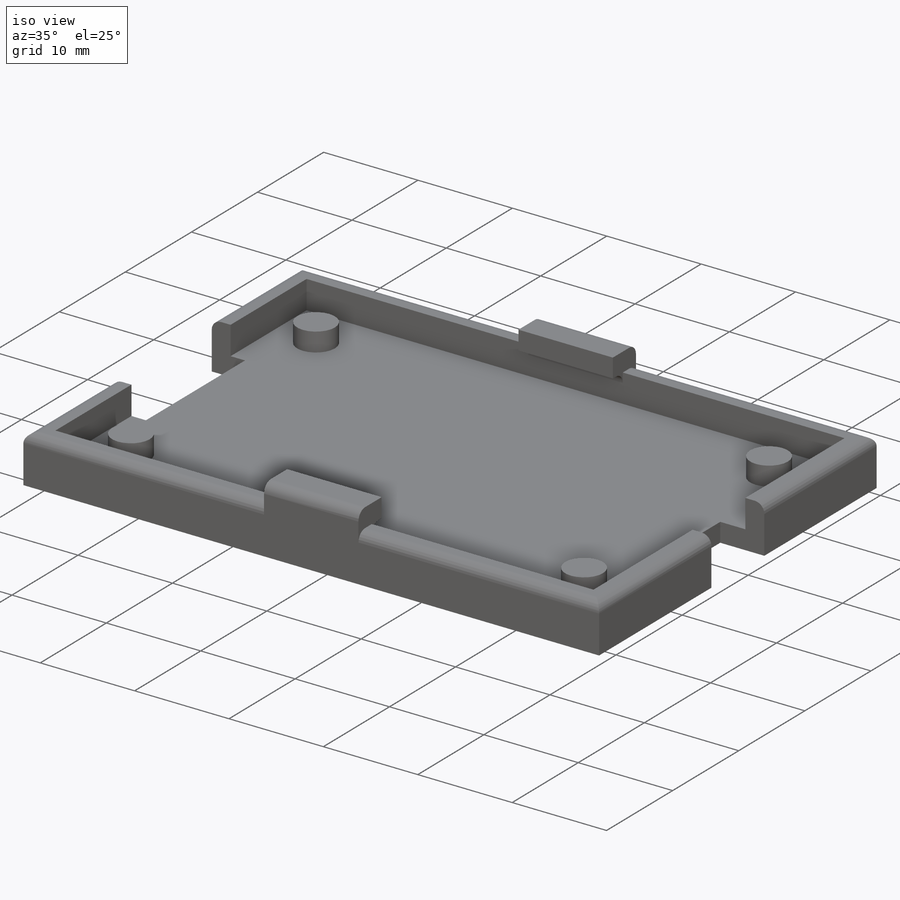
[diagram: iso view]
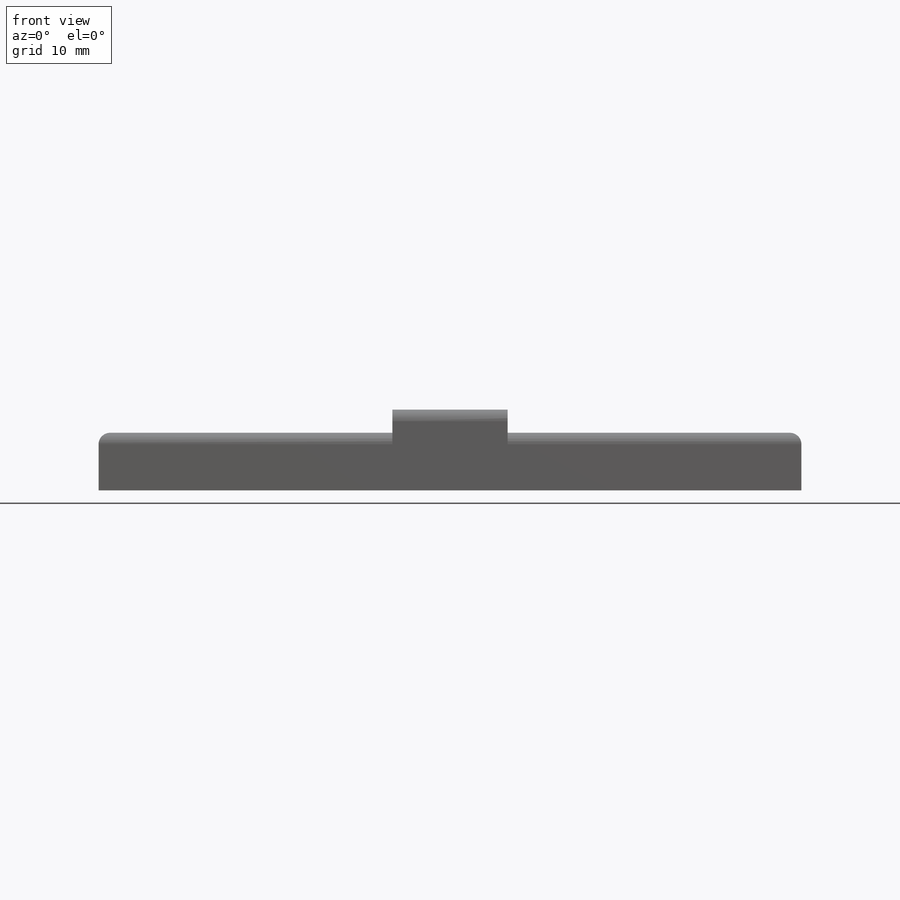
[diagram: front view]
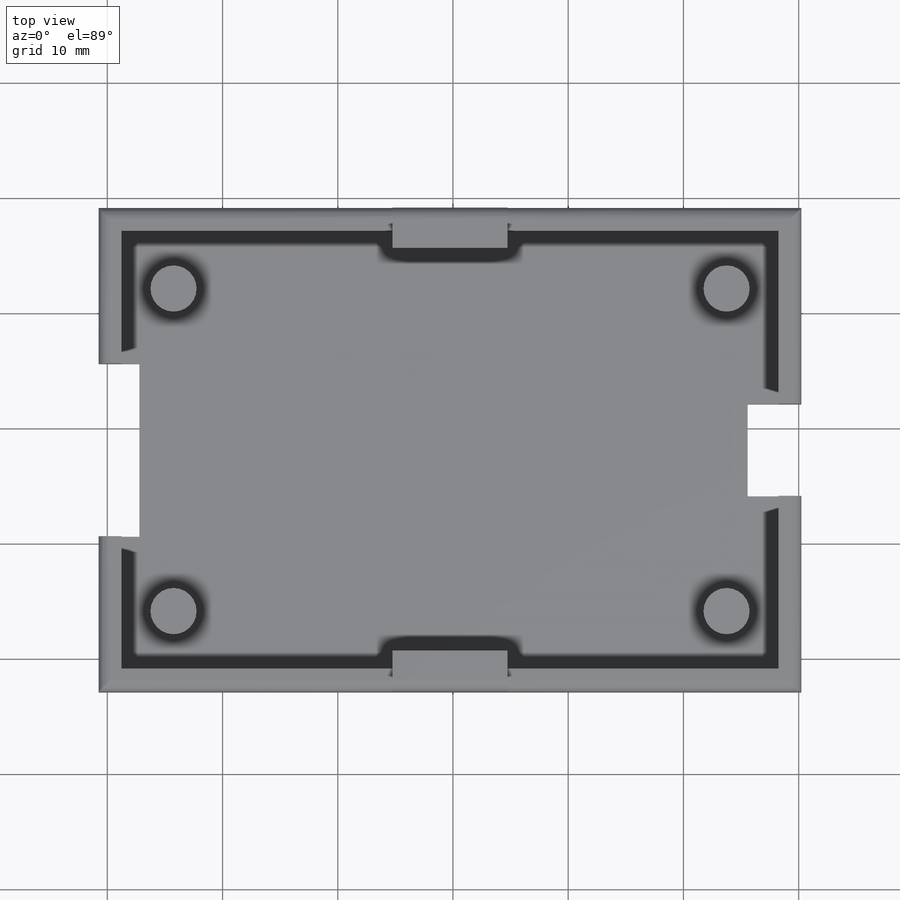
[diagram: top view]
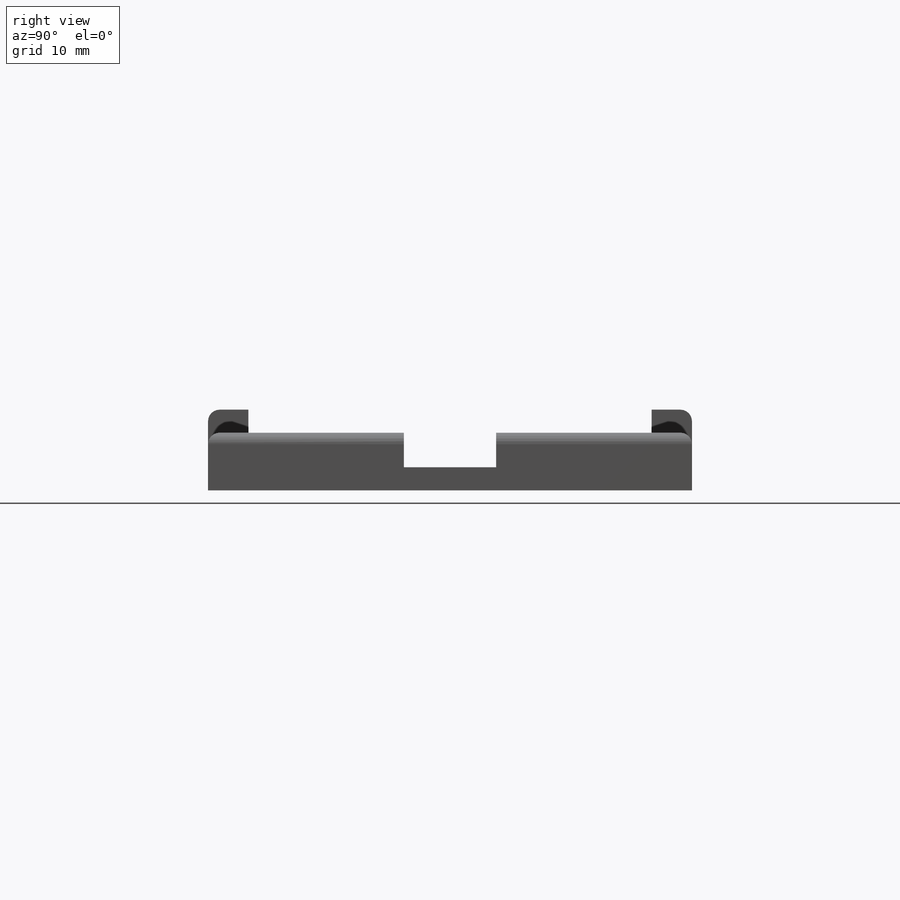
[diagram: right view]
SOLIDWORKS PART (.sldprt)
format: sldprt  version: not decoded by parser v0  size: 314,368 bytes
history: native  units: mm
features: sketch x5, extrude x4, fillet x2, material x1, cut_extrude x1 (+13 scaffold rows collapsed)
feature tree (26):
  scaffold x13  (default folders/planes/origin — collapsed)
  material  "Material <not specified>"
  sketch  "Sketch1"  dims[D1=61.0mm D2=42.0mm]
  extrude  "Boss-Extrude1"  Depth=2mm
  sketch  "Sketch2"  dims[D1=2.0mm D2=2.0mm D3=2.0mm D4=2.0mm]
  extrude  "Boss-Extrude2"  Depth=3mm
  sketch  "Sketch3"  dims[D1=15.0mm D2=8.0mm]
  cut_extrude  "Cut-Extrude1"  Depth=5mm
  sketch  "Sketch4"  dims[D1=4.0mm D2=28.0mm D3=28.0mm D4=14.0mm D5=14.0mm D6=48.0mm D7=48.0mm D8=4.5mm D9=38.0mm]
  extrude  "Boss-Extrude3"  Depth=2mm
  sketch  "Sketch5"  dims[c1.D1=10.0mm c1.D2=10.0mm c1.D3=~5.104297mm c2.D3=90.0deg c3.D3=3.5mm c3.D4=~5.680674mm c4.D4=90.0deg c5.D4=3.5mm]
  extrude  "Boss-Extrude4"  Depth=2mm
  fillet  "Fillet1"  Radius=1mm
  fillet  "Fillet2"  Radius=1mm
decode coverage: 12 of 12 modeling features carry decoded parameters
note: ~ marks probable driven/reference dimensions
note: suppression state not decoded; provenance and decode notes live in map.json
